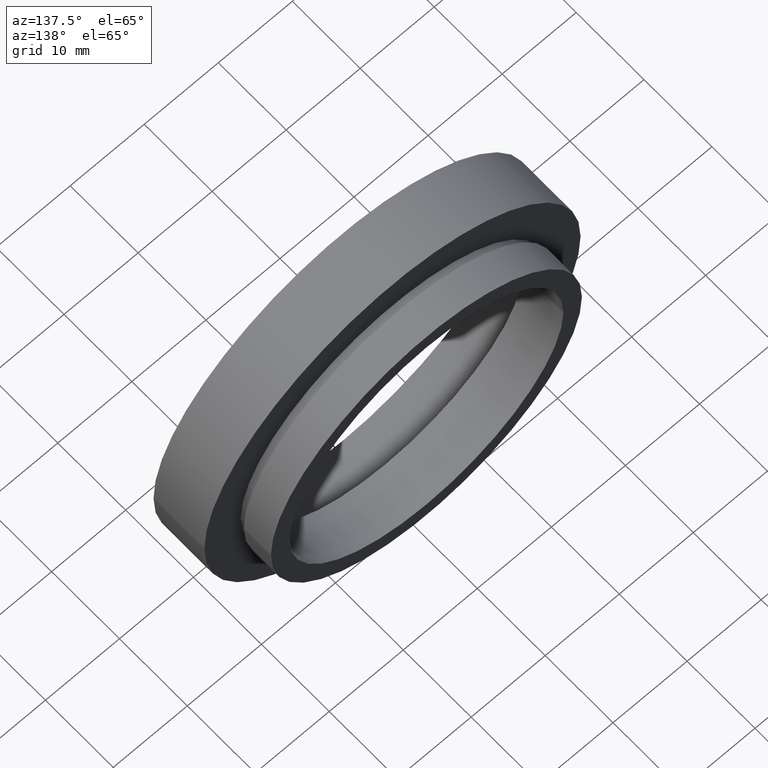
[diagram: clean part render]
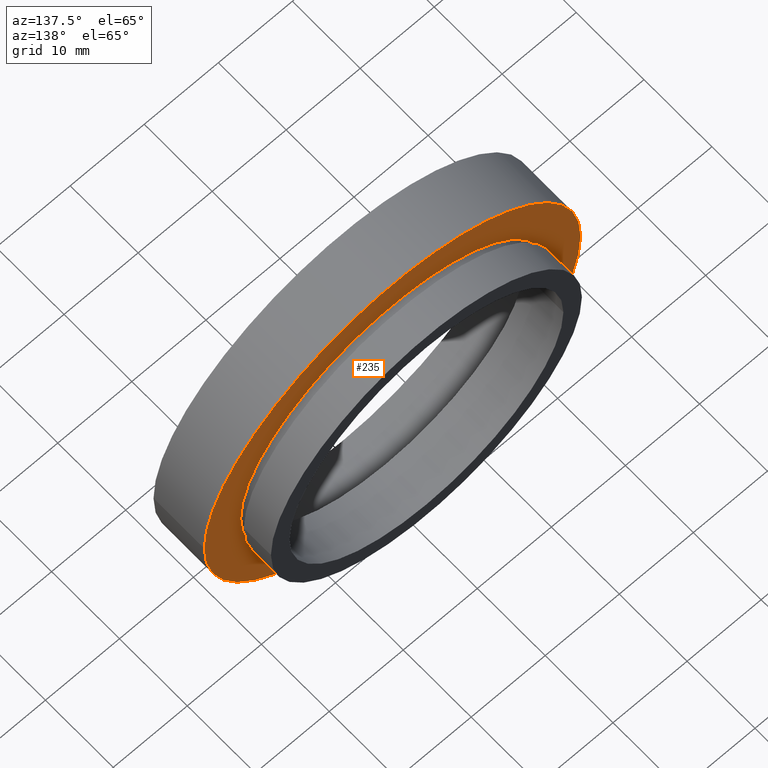
[diagram: same view with one face highlighted and labeled with its STEP entity id]
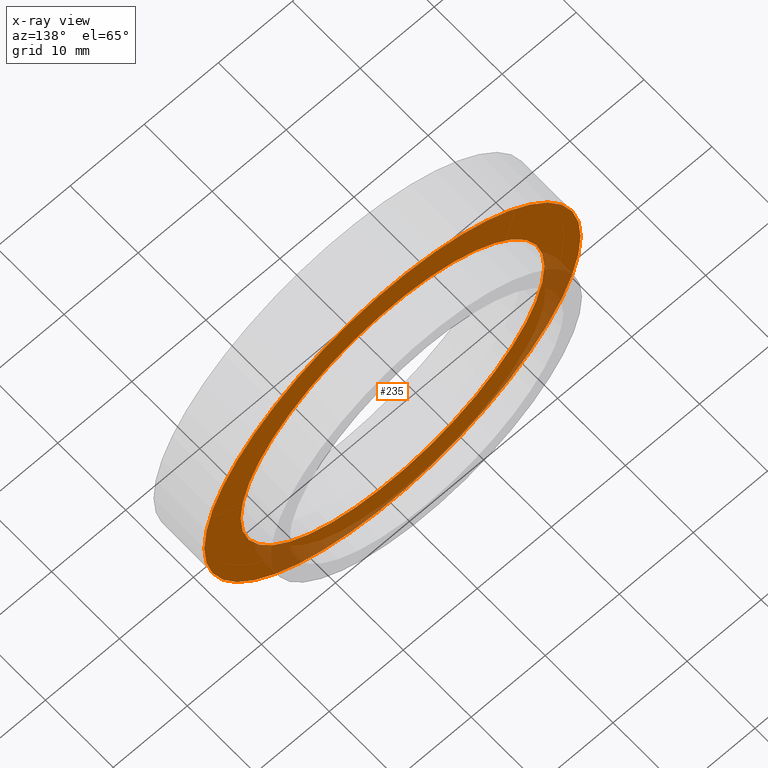
[diagram: x-ray of the same camera — body ghosted, the highlighted face saturated]
A machine part, auxiliary view. The second image highlights one B-rep face of the part: STEP entity #235.
The next image is the same camera in x-ray: the body ghosted, the highlighted face saturated — about 17% of this face is hidden behind the body in this view.
In plain terms, the highlighted planar face has unit normal (0, -1, 0).
Its self-contained STEP definition (entity closure, byte-faithful):
#58 = EDGE_CURVE ( 'NONE', #129, #588, #349, .T. ) ;
#69 = ORIENTED_EDGE ( 'NONE', *, *, #509, .T. ) ;
#72 = ORIENTED_EDGE ( 'NONE', *, *, #615, .F. ) ;
#108 = CARTESIAN_POINT ( 'NONE',  ( 1.149455719078122700E-015, 7.499999999999998200, 0.0000000000000000000 ) ) ;
#118 = DIRECTION ( 'NONE',  ( -1.000000000000000000, -1.365923996832131600E-016, 0.0000000000000000000 ) ) ;
#120 = DIRECTION ( 'NONE',  ( -1.224646799147351000E-016, 1.000000000000000000, -0.0000000000000000000 ) ) ;
#123 = CARTESIAN_POINT ( 'NONE',  ( 1.149455719078123100E-015, 7.499999999999996400, 0.0000000000000000000 ) ) ;
#128 = CIRCLE ( 'NONE', #144, 20.50000000000000000 ) ;
#129 = VERTEX_POINT ( 'NONE', #591 ) ;
#135 = DIRECTION ( 'NONE',  ( -1.000000000000000000, -1.365923996832131600E-016, 0.0000000000000000000 ) ) ;
#144 = AXIS2_PLACEMENT_3D ( 'NONE', #108, #226, #410 ) ;
#185 = ORIENTED_EDGE ( 'NONE', *, *, #397, .T. ) ;
#187 = FACE_OUTER_BOUND ( 'NONE', #589, .T. ) ;
#205 = AXIS2_PLACEMENT_3D ( 'NONE', #123, #120, #118 ) ;
#207 = CARTESIAN_POINT ( 'NONE',  ( 1.149455719078123100E-015, 7.499999999999996400, 0.0000000000000000000 ) ) ;
#212 = EDGE_LOOP ( 'NONE', ( #600, #72 ) ) ;
#216 = PLANE ( 'NONE',  #551 ) ;
#226 = DIRECTION ( 'NONE',  ( -1.224646799147351000E-016, 1.000000000000000000, -0.0000000000000000000 ) ) ;
#230 = CIRCLE ( 'NONE', #205, 25.39999999999999900 ) ;
#235 = ADVANCED_FACE ( 'NONE', ( #429, #187 ), #216, .F. ) ;
#272 = CARTESIAN_POINT ( 'NONE',  ( 25.39999999999999900, 7.500000000000000000, 3.110602869834276900E-015 ) ) ;
#284 = CARTESIAN_POINT ( 'NONE',  ( 1.149455719078122700E-015, 7.499999999999998200, 0.0000000000000000000 ) ) ;
#287 = DIRECTION ( 'NONE',  ( -1.224646799147351000E-016, 1.000000000000000000, -0.0000000000000000000 ) ) ;
#290 = DIRECTION ( 'NONE',  ( -1.000000000000000000, -1.269309860470834500E-016, 0.0000000000000000000 ) ) ;
#321 = CIRCLE ( 'NONE', #377, 25.39999999999999900 ) ;
#338 = AXIS2_PLACEMENT_3D ( 'NONE', #284, #287, #290 ) ;
#349 = CIRCLE ( 'NONE', #338, 20.50000000000000000 ) ;
#377 = AXIS2_PLACEMENT_3D ( 'NONE', #207, #593, #135 ) ;
#382 = CARTESIAN_POINT ( 'NONE',  ( 20.50000000000000000, 7.500000000000000900, 2.510525938252074500E-015 ) ) ;
#397 = EDGE_CURVE ( 'NONE', #617, #461, #321, .T. ) ;
#410 = DIRECTION ( 'NONE',  ( -1.000000000000000000, -1.269309860470834500E-016, 0.0000000000000000000 ) ) ;
#429 = FACE_BOUND ( 'NONE', #212, .T. ) ;
#439 = DIRECTION ( 'NONE',  ( 1.224646799147351000E-016, -1.000000000000000000, 0.0000000000000000000 ) ) ;
#446 = DIRECTION ( 'NONE',  ( 1.000000000000000000, 1.224646799147351000E-016, 0.0000000000000000000 ) ) ;
#461 = VERTEX_POINT ( 'NONE', #272 ) ;
#509 = EDGE_CURVE ( 'NONE', #461, #617, #230, .T. ) ;
#537 = CARTESIAN_POINT ( 'NONE',  ( -25.39999999999999900, 7.499999999999992900, 0.0000000000000000000 ) ) ;
#551 = AXIS2_PLACEMENT_3D ( 'NONE', #572, #439, #446 ) ;
#572 = CARTESIAN_POINT ( 'NONE',  ( 20.50000000000000000, 7.500000000000000000, 0.0000000000000000000 ) ) ;
#588 = VERTEX_POINT ( 'NONE', #382 ) ;
#589 = EDGE_LOOP ( 'NONE', ( #185, #69 ) ) ;
#591 = CARTESIAN_POINT ( 'NONE',  ( -20.50000000000000000, 7.499999999999995600, 0.0000000000000000000 ) ) ;
#593 = DIRECTION ( 'NONE',  ( -1.224646799147351000E-016, 1.000000000000000000, -0.0000000000000000000 ) ) ;
#600 = ORIENTED_EDGE ( 'NONE', *, *, #58, .F. ) ;
#615 = EDGE_CURVE ( 'NONE', #588, #129, #128, .T. ) ;
#617 = VERTEX_POINT ( 'NONE', #537 ) ;